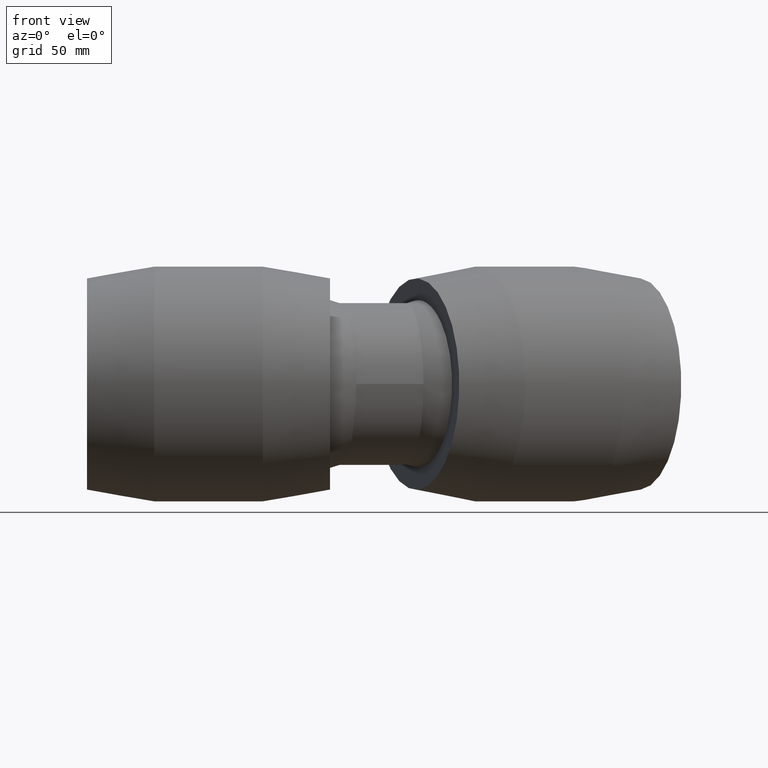
[diagram: clean part render]
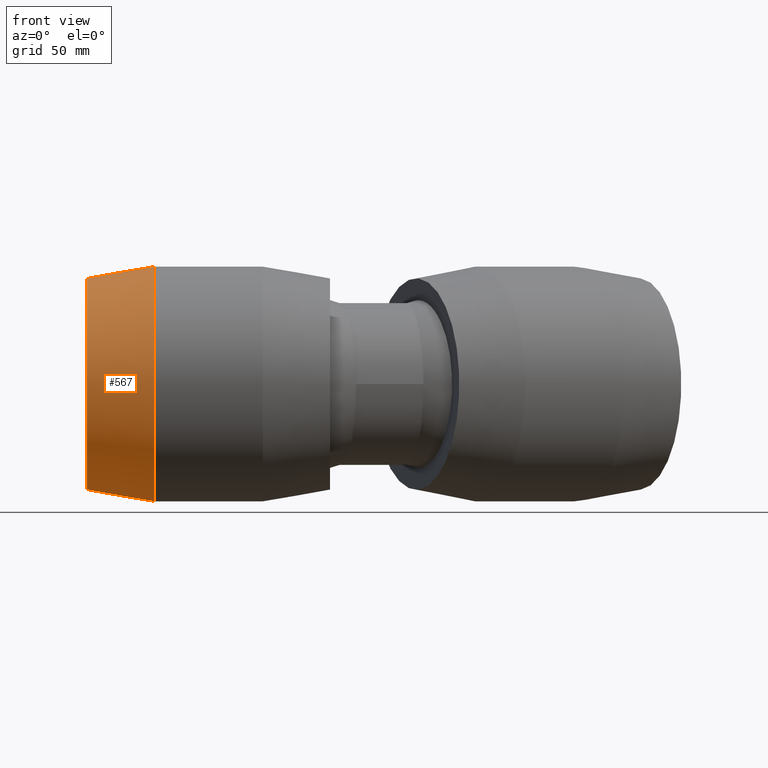
[diagram: same view with one face highlighted and labeled with its STEP entity id]
A machine part, front view. The second image highlights one B-rep face of the part: STEP entity #567.
In plain terms, the highlighted conical surface has half-angle 9.926 deg.
Its self-contained STEP definition (entity closure, byte-faithful):
#19=CONICAL_SURFACE('',#646,66.5,9.9262455066517);
#88=FACE_BOUND('',#215,.T.);
#89=FACE_BOUND('',#216,.T.);
#139=FACE_OUTER_BOUND('',#214,.T.);
#214=EDGE_LOOP('',(#487));
#215=EDGE_LOOP('',(#488));
#216=EDGE_LOOP('',(#489));
#268=B_SPLINE_CURVE_WITH_KNOTS('',3,(#1230,#1231,#1232,#1233,#1234,#1235,
#1236,#1237,#1238,#1239,#1240,#1241,#1242,#1243,#1244,#1245,#1246,#1247,
#1248,#1249,#1250,#1251,#1252,#1253,#1254,#1255,#1256,#1257,#1258,#1259,
#1260,#1261,#1262,#1263),.UNSPECIFIED.,.T.,.F.,(4,2,2,2,2,2,2,2,2,2,2,2,
2,2,2,2,4),(0.,0.337086757942032,0.674173515884064,1.01090273562605,1.34763195536804,
1.68436117511002,2.02109039485201,2.35817715279404,2.69526391073607,3.0511236087479,
3.40698330675973,3.7543078182509,4.10163232974208,4.44895684123325,4.79628135272442,
5.15214105073625,5.50800074874808),.UNSPECIFIED.);
#290=CIRCLE('',#630,70.);
#297=CIRCLE('',#645,63.);
#339=VERTEX_POINT('',#1229);
#341=VERTEX_POINT('',#1267);
#348=VERTEX_POINT('',#1289);
#394=EDGE_CURVE('',#339,#339,#268,.T.);
#396=EDGE_CURVE('',#341,#341,#290,.T.);
#403=EDGE_CURVE('',#348,#348,#297,.T.);
#487=ORIENTED_EDGE('',*,*,#396,.F.);
#488=ORIENTED_EDGE('',*,*,#394,.T.);
#489=ORIENTED_EDGE('',*,*,#403,.T.);
#567=ADVANCED_FACE('',(#139,#88,#89),#19,.T.);
#630=AXIS2_PLACEMENT_3D('',#1268,#767,#768);
#645=AXIS2_PLACEMENT_3D('',#1290,#797,#798);
#646=AXIS2_PLACEMENT_3D('',#1291,#799,#800);
#767=DIRECTION('center_axis',(1.,1.83697019872103E-16,0.));
#768=DIRECTION('ref_axis',(0.,0.,-1.));
#797=DIRECTION('center_axis',(1.,1.83697019872103E-16,0.));
#798=DIRECTION('ref_axis',(0.,0.,-1.));
#799=DIRECTION('center_axis',(1.,1.83697019872103E-16,0.));
#800=DIRECTION('ref_axis',(-1.68112701893672E-16,1.,0.));
#1229=CARTESIAN_POINT('',(-58.2782752336884,64.8383444683565,9.08187483150697));
#1230=CARTESIAN_POINT('Ctrl Pts',(-58.2782752336884,64.8383444683565,9.08187483150696));
#1231=CARTESIAN_POINT('Ctrl Pts',(-59.3850776558472,64.6465265867535,9.05500699573096));
#1232=CARTESIAN_POINT('Ctrl Pts',(-60.5674799418301,64.4733428314923,8.80847345456289));
#1233=CARTESIAN_POINT('Ctrl Pts',(-62.7424666416096,64.2125561089242,7.85868228479652));
#1234=CARTESIAN_POINT('Ctrl Pts',(-63.7347749630351,64.1233406554925,7.15523587336396));
#1235=CARTESIAN_POINT('Ctrl Pts',(-65.2976764855467,64.0079771574413,5.54626560133487));
#1236=CARTESIAN_POINT('Ctrl Pts',(-65.9737223196777,63.9736721645598,4.53330099300108));
#1237=CARTESIAN_POINT('Ctrl Pts',(-66.8690840589629,63.9352973325543,2.32135832142275));
#1238=CARTESIAN_POINT('Ctrl Pts',(-67.0884507094998,63.9295211258375,1.12243073247329));
#1239=CARTESIAN_POINT('Ctrl Pts',(-67.0884507094999,63.9295211258375,-1.12243073247328));
#1240=CARTESIAN_POINT('Ctrl Pts',(-66.8690840589629,63.9352973325543,-2.32135832142274));
#1241=CARTESIAN_POINT('Ctrl Pts',(-65.9737223196777,63.9736721645598,-4.53330099300107));
#1242=CARTESIAN_POINT('Ctrl Pts',(-65.2976764855467,64.0079771574413,-5.54626560133486));
#1243=CARTESIAN_POINT('Ctrl Pts',(-63.7347749630351,64.1233406554925,-7.15523587336396));
#1244=CARTESIAN_POINT('Ctrl Pts',(-62.7424666416096,64.2125561089242,-7.85868228479652));
#1245=CARTESIAN_POINT('Ctrl Pts',(-60.5674799418301,64.4733428314923,-8.80847345456289));
#1246=CARTESIAN_POINT('Ctrl Pts',(-59.3850776558472,64.6465265867535,-9.05500699573096));
#1247=CARTESIAN_POINT('Ctrl Pts',(-57.1098330851068,65.0408450169905,-9.11023898316884));
#1248=CARTESIAN_POINT('Ctrl Pts',(-55.8664400452358,65.2915403914064,-8.89878993824291));
#1249=CARTESIAN_POINT('Ctrl Pts',(-53.5797399104516,65.8128169742091,-7.98400912840415));
#1250=CARTESIAN_POINT('Ctrl Pts',(-52.5359427408163,66.0816118224076,-7.28088542954727));
#1251=CARTESIAN_POINT('Ctrl Pts',(-50.9041228211027,66.5266193085648,-5.65816507876982));
#1252=CARTESIAN_POINT('Ctrl Pts',(-50.1998671120547,66.7336346803086,-4.63758823236201));
#1253=CARTESIAN_POINT('Ctrl Pts',(-49.2616722063576,67.0162269160132,-2.38755621758955));
#1254=CARTESIAN_POINT('Ctrl Pts',(-49.0280631453805,67.0900889495584,-1.15774837163724));
#1255=CARTESIAN_POINT('Ctrl Pts',(-49.0280631453805,67.0900889495584,1.15774837163724));
#1256=CARTESIAN_POINT('Ctrl Pts',(-49.2616722063576,67.0162269160132,2.38755621758955));
#1257=CARTESIAN_POINT('Ctrl Pts',(-50.1998671120547,66.7336346803086,4.63758823236201));
#1258=CARTESIAN_POINT('Ctrl Pts',(-50.9041228211027,66.5266193085648,5.65816507876982));
#1259=CARTESIAN_POINT('Ctrl Pts',(-52.5359427408163,66.0816118224076,7.28088542954727));
#1260=CARTESIAN_POINT('Ctrl Pts',(-53.5797399104516,65.8128169742091,7.98400912840415));
#1261=CARTESIAN_POINT('Ctrl Pts',(-55.8664400452358,65.2915403914064,8.89878993824291));
#1262=CARTESIAN_POINT('Ctrl Pts',(-57.1098330851068,65.0408450169905,9.11023898316884));
#1263=CARTESIAN_POINT('Ctrl Pts',(-58.2782752336884,64.8383444683565,9.08187483150696));
#1267=CARTESIAN_POINT('',(-32.4,70.,0.));
#1268=CARTESIAN_POINT('Origin',(-32.4,7.34788079488412E-15,0.));
#1289=CARTESIAN_POINT('',(-72.4,63.,0.));
#1290=CARTESIAN_POINT('Origin',(-72.4,2.46519032881566E-30,0.));
#1291=CARTESIAN_POINT('Origin',(-52.4,3.67394039744206E-15,0.));